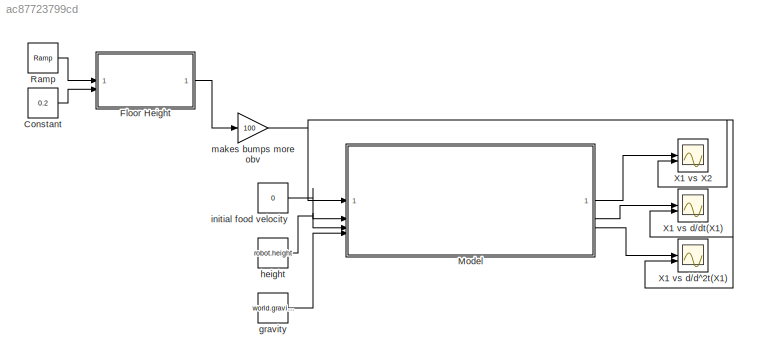
MODEL slx_ac87723799cd
KIND model
CONFIG AbsTol = auto
CONFIG EnableMultiTasking = off
CONFIG FixedStep = auto
CONFIG MaxStep = 0.0001
CONFIG MinStep = auto
CONFIG RelTol = 1e-3
CONFIG SampleTimeConstraint = Unconstrained
CONFIG SolverName = VariableStepAuto
CONFIG StartTime = 0.0
CONFIG StopTime = 10.0
BLOCK [Constant] Constant
  Value = 0.2
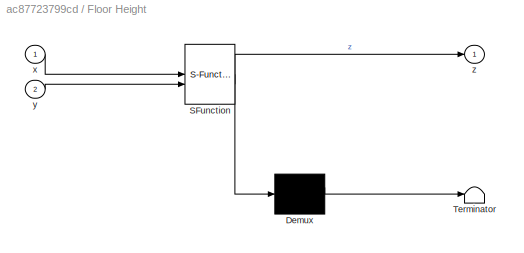
BLOCK [SubSystem] Floor Height
  ErrorFcn = Stateflow.Translate.translate
  PermitHierarchicalResolution = ExplicitOnly
  SFBlockType = MATLAB Function
  TreatAsAtomicUnit = on
BLOCK [Demux] Floor Height/ Demux 
  Outputs = 1
BLOCK [S-Function] Floor Height/ SFunction 
  EnableBusSupport = off
  FunctionName = sf_sfun
  PortCounts = [2 2]
  SFcnIsStateOwnerBlock = off
  SFunctionDeploymentMode = off
  Tag = Stateflow S-Function 2
BLOCK [Terminator] Floor Height/ Terminator 
BLOCK [Inport] Floor Height/x
BLOCK [Inport] Floor Height/y
  Port = 2
BLOCK [Outport] Floor Height/z
BLOCK [ModelReference] Model
  ModelNameDialog = wheelSuspension.slx
  ModelReferenceVersion = 1.28
BLOCK [Reference] Ramp  REF=simulink/Sources/Ramp
  SourceBlock = simulink/Sources/Ramp
  SourceType = Ramp
BLOCK [Scope] X1 vs X2
  ActiveDisplayYMaximum = 5.0205811298797247
  ActiveDisplayYMinimum = 4.5571520285461871
  Floating = off
  GraphicalSettings = {"AxesScalingProperties":{"AlignXAxis":"Center","AlignYAxis":"Center","AutoScaleXAxisLimits":false,"AxesScaling":"Manual","AxesScalingNumUpdates":10,"ExpandOnly":true,"ScaleAxesLimitsAtStop":false,"XAxisDataRange":100,"YAxisDataRange":80},"DisplayProperties":{"ColorOrder":["auto","auto","auto","auto","auto","auto","auto","auto","auto","auto","auto","auto","auto","auto","auto","auto","auto","auto",...<+2091ch>
  MultipleDisplayCache = [{"MaxYLimMag":5.625,"MaxYLimReal":5.0205811298797247,"MinYLimMag":0,"MinYLimReal":4.5571520285461871,"PlotAsMagnitudePhase":false,"ShowGrid":true,"ShowLegend":false,"Title":"%<SignalLabel>","YLabel":""}]
  NumInputPorts = 2
  ScopeFrameLocation = window
  WasSavedAsWebScope = on
  WindowPosition = [514.000000,246.000000,738.000000,568.000000,]
BLOCK [Scope] X1 vs d//d^2t(X1)
  ActiveDisplayYMaximum = 2.1836137872966082
  ActiveDisplayYMinimum = -1.2147617693969959
  DataLoggingVariableName = ScopeData2
  Floating = off
  GraphicalSettings = {"AxesScalingProperties":{"AlignXAxis":"Center","AlignYAxis":"Center","AutoScaleXAxisLimits":false,"AxesScaling":"Manual","AxesScalingNumUpdates":10,"ExpandOnly":true,"ScaleAxesLimitsAtStop":false,"XAxisDataRange":100,"YAxisDataRange":80},"DisplayProperties":{"ColorOrder":["auto","auto","auto","auto","auto","auto","auto","auto","auto","auto","auto","auto","auto","auto","auto","auto","auto","auto",...<+2116ch>
  MultipleDisplayCache = [{"MaxYLimMag":0.0605870038605287,"MaxYLimReal":2.1836137872966082,"MinYLimMag":0,"MinYLimReal":-1.2147617693969959,"PlotAsMagnitudePhase":false,"ShowGrid":true,"ShowLegend":false,"Title":"%<SignalLabel>","YLabel":""}]
  NumInputPorts = 2
  ScopeFrameLocation = window
  WasSavedAsWebScope = on
  WindowPosition = [406.000000,443.000000,560.000000,420.000000,]
BLOCK [Scope] X1 vs d//dt(X1)
  ActiveDisplayYMaximum = 0.55220064527891433
  ActiveDisplayYMinimum = -0.755362167014505
  DataLoggingVariableName = ScopeData1
  Floating = off
  GraphicalSettings = {"AxesScalingProperties":{"AlignXAxis":"Center","AlignYAxis":"Center","AutoScaleXAxisLimits":false,"AxesScaling":"Manual","AxesScalingNumUpdates":10,"ExpandOnly":true,"ScaleAxesLimitsAtStop":false,"XAxisDataRange":100,"YAxisDataRange":80},"DisplayProperties":{"ColorOrder":["auto","auto","auto","auto","auto","auto","auto","auto","auto","auto","auto","auto","auto","auto","auto","auto","auto","auto",...<+2116ch>
  MultipleDisplayCache = [{"MaxYLimMag":8.0982729563439051,"MaxYLimReal":0.55220064527891433,"MinYLimMag":0,"MinYLimReal":-0.755362167014505,"PlotAsMagnitudePhase":false,"ShowGrid":true,"ShowLegend":false,"Title":"%<SignalLabel>","YLabel":""}]
  NumInputPorts = 2
  ScopeFrameLocation = window
  WasSavedAsWebScope = on
  WindowPosition = [635.000000,136.000000,560.000000,420.000000,]
BLOCK [Constant] gravity
  Value = world.gravity
BLOCK [Constant] height
  Value = robot.height
BLOCK [Constant] initial food velocity
  Value = 0
BLOCK [Gain] makes bumps more obv
  Gain = 100
LINE Constant:1 -> Floor Height:2
LINE Floor Height:1 -> makes bumps more obv:1
LINE Model:1 -> X1 vs X2:1
LINE Model:2 -> X1 vs d//dt(X1):1
LINE Model:3 -> X1 vs d//d^2t(X1):1
LINE Ramp:1 -> Floor Height:1
LINE gravity:1 -> Model:4
LINE height:1 -> Model:3
LINE initial food velocity:1 -> Model:2
NET makes bumps more obv:1 -> Model:1, X1 vs X2:2, X1 vs d//d^2t(X1):2, X1 vs d//dt(X1):2
note: NET lines group one-source signal fan-out (src -> all destinations, sorted); 1:1 wires keep LINE
CHART Floor Height states=1 transitions=1
  STATE_LABEL 'eML_blk_kernel()'
  STATE_LABEL 'SCRIPT:\nfunction z = floorHeightFcn(x, y)\n%#codegen\n% FLOORHEIGHTFCN  Return floor height [m] at position (x,y).\n% Suitable for MATLAB Function blocks (no dynamic sizing / cat / zeros).\n\n%% ---- CONSTANTS --------------------------------------------------------\ntile_pitch          = 0.3048;  % 1 ft in m\ngrout_width         = 0.010;   % 1 cm in m \ngrout_depth         = 0.005;   % 5 mm in m\ntile_sur...<+1663ch>'
CHART  states=0 transitions=0
